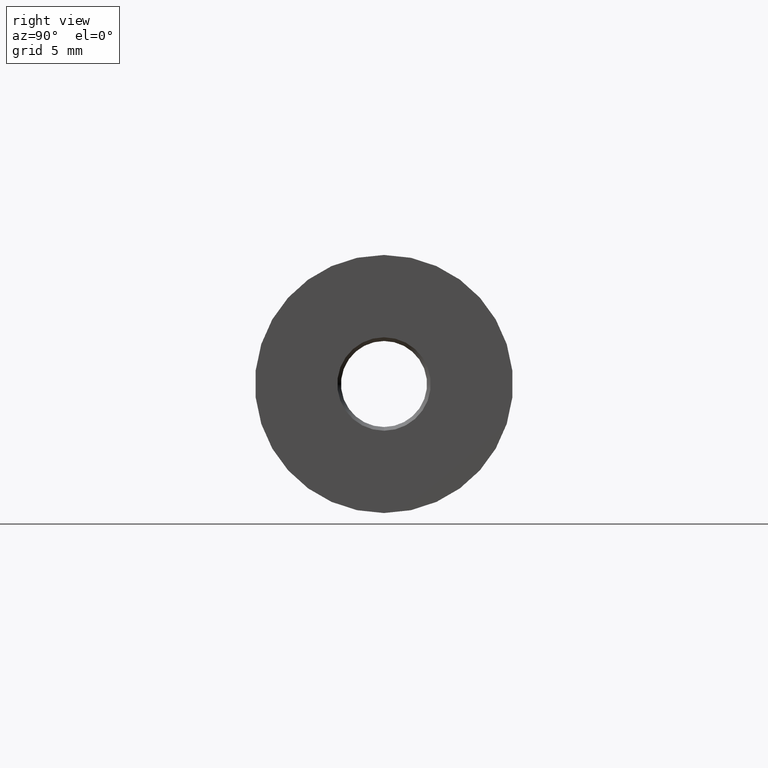
[diagram: clean part render]
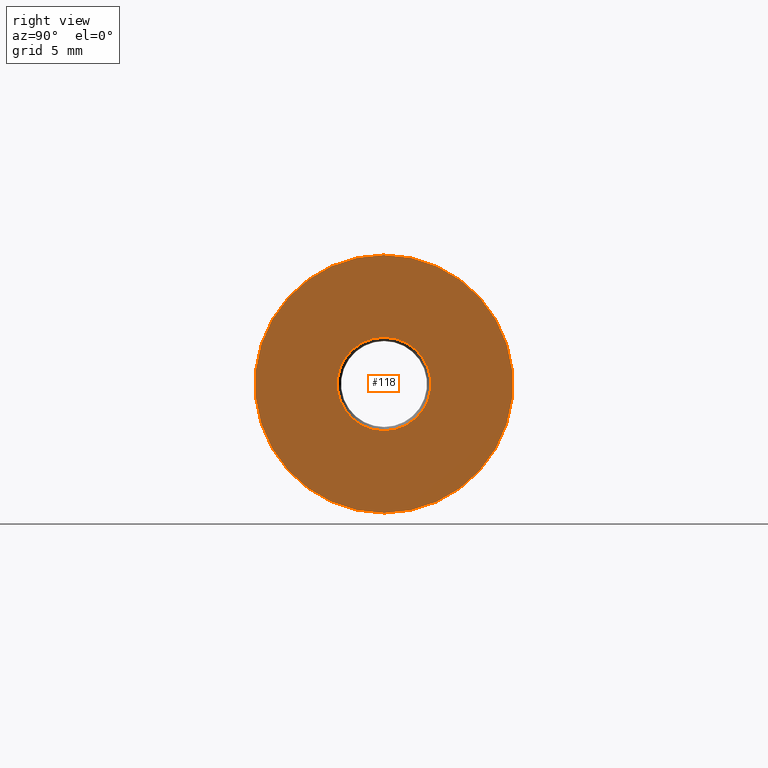
[diagram: same view with one face highlighted and labeled with its STEP entity id]
A machine part, right view. The second image highlights one B-rep face of the part: STEP entity #118.
In plain terms, the highlighted planar face has unit normal (-1, 0, -0).
Its self-contained STEP definition (entity closure, byte-faithful):
#1 = ORIENTED_EDGE ( 'NONE', *, *, #425, .F. ) ;
#53 = CARTESIAN_POINT ( 'NONE',  ( 0.0000000000000000000, 2.661408646039689100E-016, 2.173205080756889000 ) ) ;
#74 = DIRECTION ( 'NONE',  ( -1.000000000000000000, -0.0000000000000000000, -0.0000000000000000000 ) ) ;
#77 = DIRECTION ( 'NONE',  ( 0.0000000000000000000, 0.0000000000000000000, 1.000000000000000000 ) ) ;
#82 = EDGE_CURVE ( 'NONE', #384, #552, #694, .T. ) ;
#95 = EDGE_LOOP ( 'NONE', ( #585, #245 ) ) ;
#118 = ADVANCED_FACE ( 'NONE', ( #268, #143 ), #399, .F. ) ;
#119 = CARTESIAN_POINT ( 'NONE',  ( 0.0000000000000000000, 0.0000000000000000000, -2.173205080756889000 ) ) ;
#135 = CIRCLE ( 'NONE', #546, 6.000000000000000000 ) ;
#143 = FACE_BOUND ( 'NONE', #95, .T. ) ;
#153 = CARTESIAN_POINT ( 'NONE',  ( 0.0000000000000000000, 0.0000000000000000000, 0.0000000000000000000 ) ) ;
#181 = VERTEX_POINT ( 'NONE', #627 ) ;
#203 = CARTESIAN_POINT ( 'NONE',  ( 0.0000000000000000000, 0.0000000000000000000, 6.000000000000000000 ) ) ;
#245 = ORIENTED_EDGE ( 'NONE', *, *, #82, .T. ) ;
#262 = DIRECTION ( 'NONE',  ( 0.0000000000000000000, 0.0000000000000000000, 1.000000000000000000 ) ) ;
#268 = FACE_OUTER_BOUND ( 'NONE', #742, .T. ) ;
#299 = DIRECTION ( 'NONE',  ( -1.000000000000000000, -0.0000000000000000000, -0.0000000000000000000 ) ) ;
#322 = EDGE_CURVE ( 'NONE', #552, #384, #506, .T. ) ;
#346 = CIRCLE ( 'NONE', #710, 6.000000000000000000 ) ;
#351 = CARTESIAN_POINT ( 'NONE',  ( 0.0000000000000000000, 0.0000000000000000000, 0.0000000000000000000 ) ) ;
#384 = VERTEX_POINT ( 'NONE', #53 ) ;
#399 = PLANE ( 'NONE',  #726 ) ;
#419 = CARTESIAN_POINT ( 'NONE',  ( 0.0000000000000000000, 0.0000000000000000000, 0.0000000000000000000 ) ) ;
#425 = EDGE_CURVE ( 'NONE', #463, #181, #346, .T. ) ;
#456 = CARTESIAN_POINT ( 'NONE',  ( 0.0000000000000000000, 2.173205080756889000, 0.0000000000000000000 ) ) ;
#463 = VERTEX_POINT ( 'NONE', #203 ) ;
#473 = DIRECTION ( 'NONE',  ( 0.0000000000000000000, 0.0000000000000000000, 1.000000000000000000 ) ) ;
#493 = DIRECTION ( 'NONE',  ( -1.000000000000000000, 0.0000000000000000000, -0.0000000000000000000 ) ) ;
#506 = CIRCLE ( 'NONE', #740, 2.173205080756889000 ) ;
#546 = AXIS2_PLACEMENT_3D ( 'NONE', #153, #74, #77 ) ;
#552 = VERTEX_POINT ( 'NONE', #119 ) ;
#561 = DIRECTION ( 'NONE',  ( 0.0000000000000000000, 0.0000000000000000000, 1.000000000000000000 ) ) ;
#585 = ORIENTED_EDGE ( 'NONE', *, *, #322, .T. ) ;
#586 = ORIENTED_EDGE ( 'NONE', *, *, #671, .F. ) ;
#627 = CARTESIAN_POINT ( 'NONE',  ( 0.0000000000000000000, 7.347880794884119700E-016, -6.000000000000000000 ) ) ;
#636 = DIRECTION ( 'NONE',  ( -1.000000000000000000, -0.0000000000000000000, -0.0000000000000000000 ) ) ;
#642 = DIRECTION ( 'NONE',  ( -1.000000000000000000, -0.0000000000000000000, -0.0000000000000000000 ) ) ;
#658 = DIRECTION ( 'NONE',  ( -0.0000000000000000000, 0.0000000000000000000, 1.000000000000000000 ) ) ;
#661 = CARTESIAN_POINT ( 'NONE',  ( 0.0000000000000000000, 0.0000000000000000000, 0.0000000000000000000 ) ) ;
#671 = EDGE_CURVE ( 'NONE', #181, #463, #135, .T. ) ;
#694 = CIRCLE ( 'NONE', #704, 2.173205080756889000 ) ;
#704 = AXIS2_PLACEMENT_3D ( 'NONE', #661, #299, #561 ) ;
#710 = AXIS2_PLACEMENT_3D ( 'NONE', #351, #642, #473 ) ;
#726 = AXIS2_PLACEMENT_3D ( 'NONE', #456, #493, #658 ) ;
#740 = AXIS2_PLACEMENT_3D ( 'NONE', #419, #636, #262 ) ;
#742 = EDGE_LOOP ( 'NONE', ( #1, #586 ) ) ;